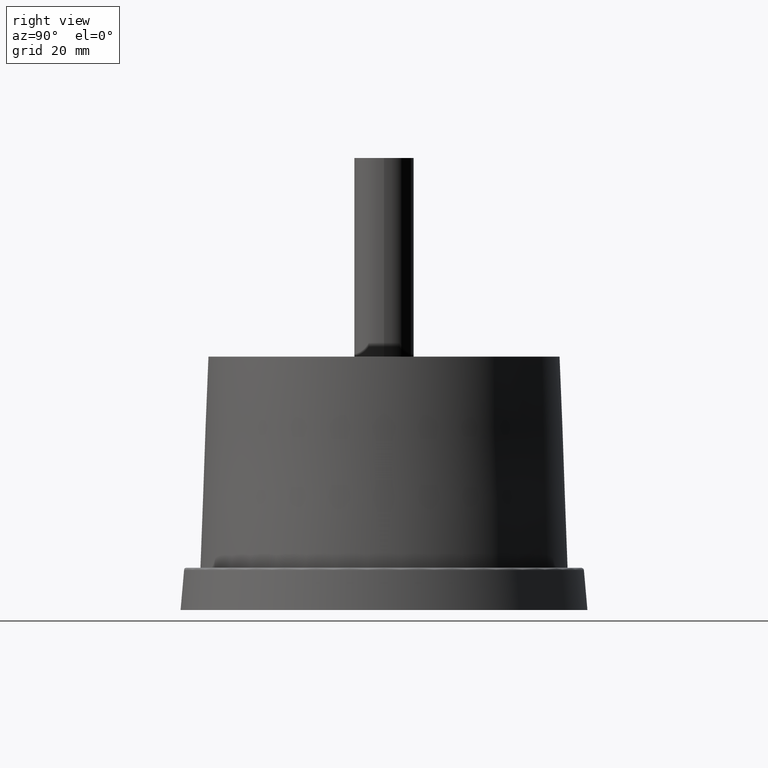
[diagram: clean part render]
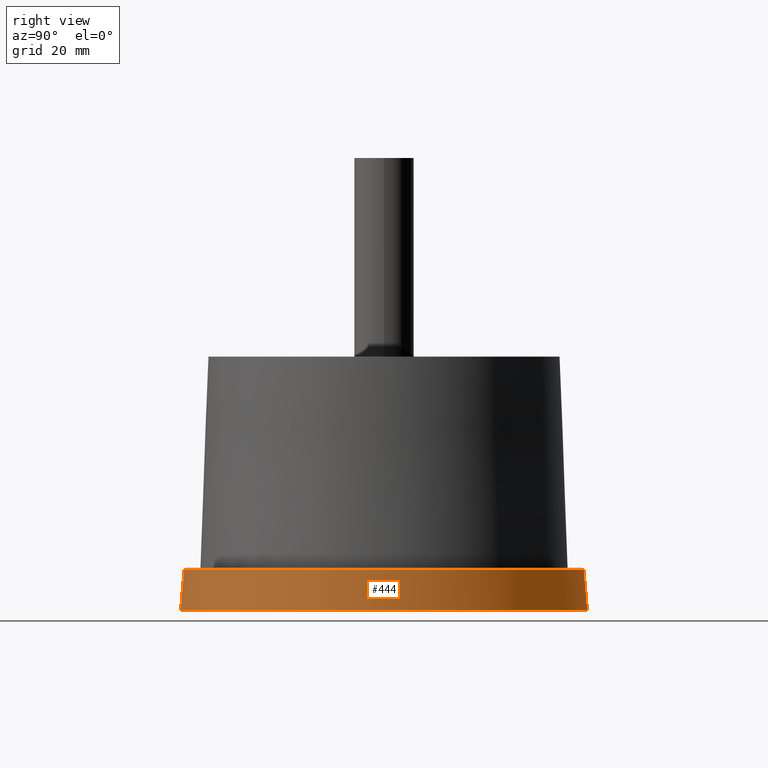
[diagram: same view with one face highlighted and labeled with its STEP entity id]
A machine part, right view. The second image highlights one B-rep face of the part: STEP entity #444.
In plain terms, the highlighted conical surface has half-angle 5.042 deg.
Its self-contained STEP definition (entity closure, byte-faithful):
#15=CONICAL_SURFACE('',#508,41.,5.04245106917098);
#56=FACE_BOUND('',#157,.T.);
#97=FACE_OUTER_BOUND('',#156,.T.);
#156=EDGE_LOOP('',(#361));
#157=EDGE_LOOP('',(#362));
#221=CIRCLE('',#505,40.2902399789575);
#223=CIRCLE('',#509,41.);
#262=VERTEX_POINT('',#775);
#264=VERTEX_POINT('',#781);
#303=EDGE_CURVE('',#262,#262,#221,.T.);
#305=EDGE_CURVE('',#264,#264,#223,.T.);
#361=ORIENTED_EDGE('',*,*,#305,.T.);
#362=ORIENTED_EDGE('',*,*,#303,.F.);
#444=ADVANCED_FACE('',(#97,#56),#15,.T.);
#505=AXIS2_PLACEMENT_3D('',#776,#625,#626);
#508=AXIS2_PLACEMENT_3D('',#780,#631,#632);
#509=AXIS2_PLACEMENT_3D('',#782,#633,#634);
#625=DIRECTION('center_axis',(0.,0.,1.));
#626=DIRECTION('ref_axis',(1.,1.22464679914735E-16,0.));
#631=DIRECTION('center_axis',(0.,0.,-1.));
#632=DIRECTION('ref_axis',(-1.,0.,0.));
#633=DIRECTION('center_axis',(0.,0.,1.));
#634=DIRECTION('ref_axis',(-1.,0.,0.));
#775=CARTESIAN_POINT('',(-40.2902399789575,-9.86826268542181E-15,8.04394690514818));
#776=CARTESIAN_POINT('Origin',(0.,-4.93038065763132E-31,8.04394690514818));
#780=CARTESIAN_POINT('Origin',(0.,0.,0.));
#781=CARTESIAN_POINT('',(-41.,0.,0.));
#782=CARTESIAN_POINT('Origin',(0.,0.,0.));